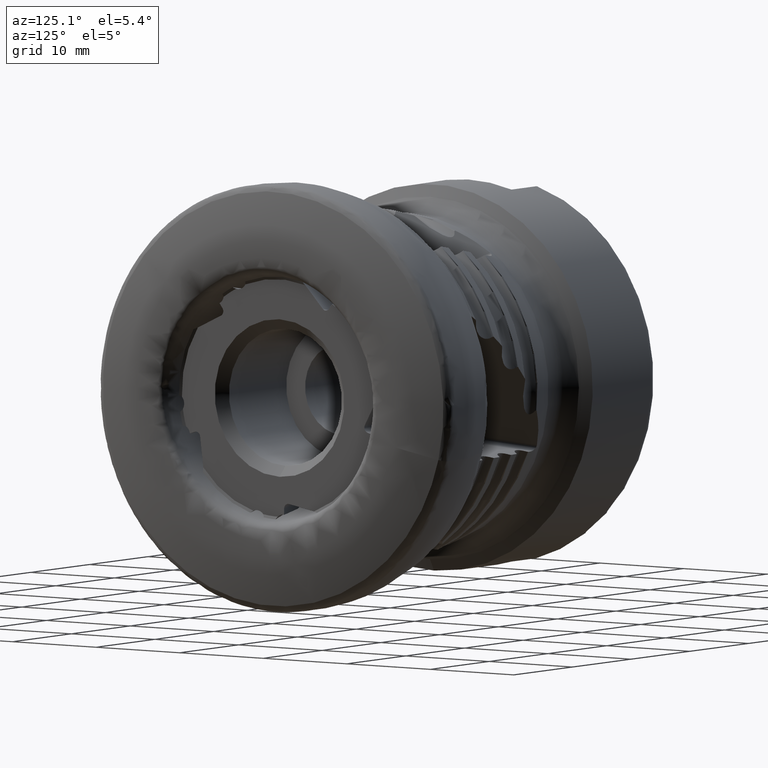
[diagram: clean part render]
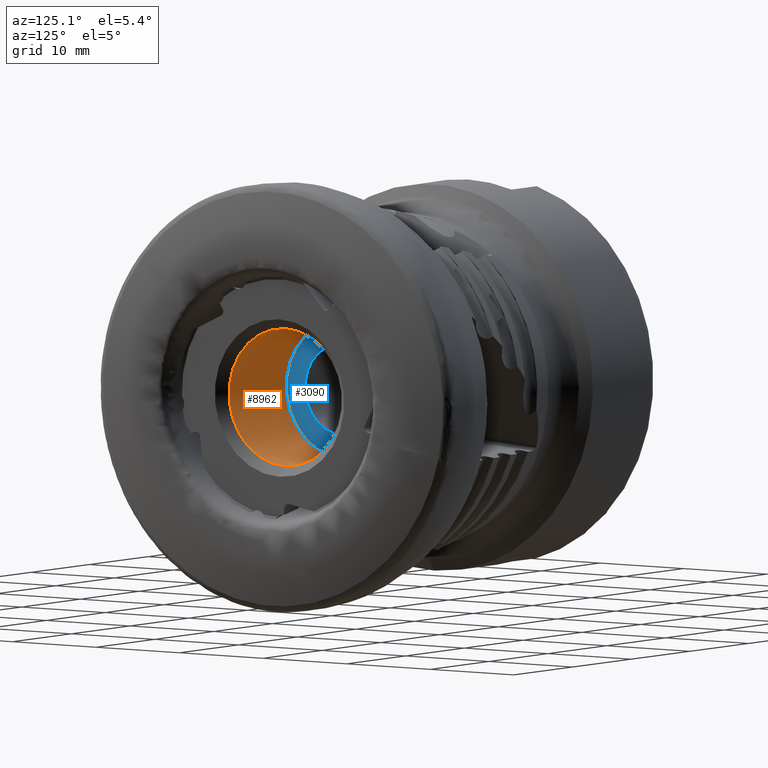
[diagram: same view with the hole feature highlighted: cylindrical wall and planar end face, labeled with their STEP entity ids]
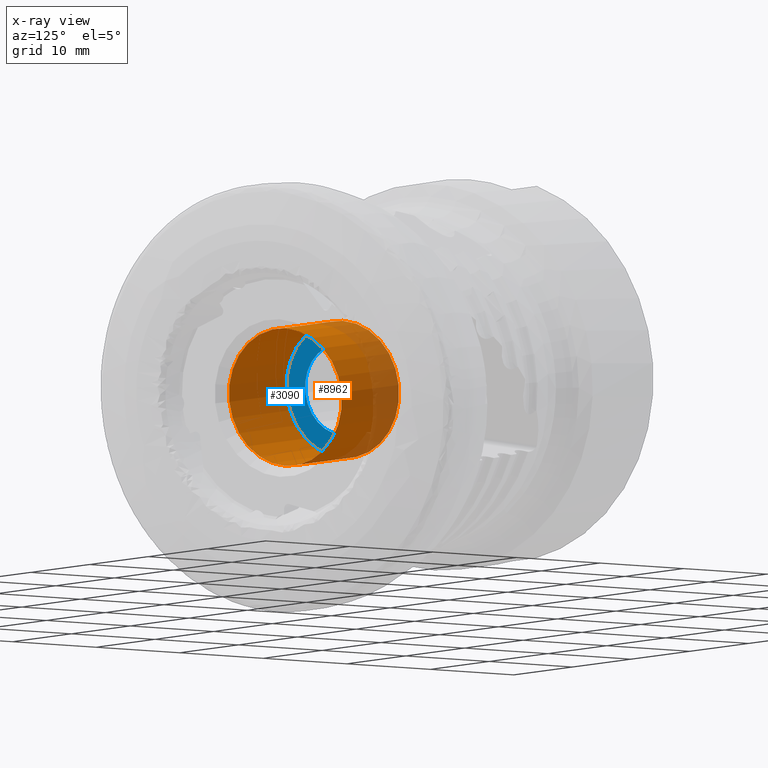
[diagram: x-ray of the same camera — body ghosted, the hole faces saturated]
A machine part, auxiliary view. The highlighted faces form one hole feature of diameter 13.5 mm: the cylindrical wall (entity #8962, orange) and its adjacent planar end face (entity #3090, blue) — they share a circular edge in the B-rep.
The next image is the same camera in x-ray (body ghosted, the hole faces saturated) — the bore reads through the body.
Wall:
#623 = FACE_OUTER_BOUND ( 'NONE', #9090, .T. ) ;
#741 = ORIENTED_EDGE ( 'NONE', *, *, #2740, .T. ) ;
#971 = VERTEX_POINT ( 'NONE', #8392 ) ;
#1312 = DIRECTION ( 'NONE',  ( 1.000000000000000000, -0.0000000000000000000, -0.0000000000000000000 ) ) ;
#1535 = DIRECTION ( 'NONE',  ( 0.0000000000000000000, 0.0000000000000000000, -1.000000000000000000 ) ) ;
#2212 = EDGE_CURVE ( 'NONE', #3015, #3015, #5958, .T. ) ;
#2740 = EDGE_CURVE ( 'NONE', #971, #971, #4090, .T. ) ;
#3015 = VERTEX_POINT ( 'NONE', #6250 ) ;
#3757 = AXIS2_PLACEMENT_3D ( 'NONE', #5959, #1312, #3774 ) ;
#3774 = DIRECTION ( 'NONE',  ( 0.0000000000000000000, 0.0000000000000000000, -1.000000000000000000 ) ) ;
#4090 = CIRCLE ( 'NONE', #3757, 6.750000000000000000 ) ;
#4492 = FACE_OUTER_BOUND ( 'NONE', #6006, .T. ) ;
#5374 = DIRECTION ( 'NONE',  ( 1.000000000000000000, -0.0000000000000000000, -0.0000000000000000000 ) ) ;
#5538 = ORIENTED_EDGE ( 'NONE', *, *, #2212, .F. ) ;
#5958 = CIRCLE ( 'NONE', #7998, 6.749999999999999100 ) ;
#5959 = CARTESIAN_POINT ( 'NONE',  ( -2.249999999999998700, 0.0000000000000000000, 0.0000000000000000000 ) ) ;
#6006 = EDGE_LOOP ( 'NONE', ( #741 ) ) ;
#6118 = CARTESIAN_POINT ( 'NONE',  ( 0.0000000000000000000, 0.0000000000000000000, 0.0000000000000000000 ) ) ;
#6192 = CYLINDRICAL_SURFACE ( 'NONE', #7294, 6.749999999999999100 ) ;
#6250 = CARTESIAN_POINT ( 'NONE',  ( -12.00000000000000000, 0.0000000000000000000, -6.749999999999999100 ) ) ;
#7294 = AXIS2_PLACEMENT_3D ( 'NONE', #6118, #5374, #1535 ) ;
#7653 = CARTESIAN_POINT ( 'NONE',  ( -12.00000000000000000, 0.0000000000000000000, 0.0000000000000000000 ) ) ;
#7657 = DIRECTION ( 'NONE',  ( 1.000000000000000000, -0.0000000000000000000, -0.0000000000000000000 ) ) ;
#7666 = DIRECTION ( 'NONE',  ( 0.0000000000000000000, 0.0000000000000000000, -1.000000000000000000 ) ) ;
#7998 = AXIS2_PLACEMENT_3D ( 'NONE', #7653, #7657, #7666 ) ;
#8392 = CARTESIAN_POINT ( 'NONE',  ( -2.249999999999998700, 0.0000000000000000000, -6.750000000000000000 ) ) ;
#8962 = ADVANCED_FACE ( 'NONE', ( #623, #4492 ), #6192, .F. ) ;
#9090 = EDGE_LOOP ( 'NONE', ( #5538 ) ) ;
End face:
#778 = DIRECTION ( 'NONE',  ( -1.000000000000000000, 0.0000000000000000000, 0.0000000000000000000 ) ) ;
#934 = EDGE_CURVE ( 'NONE', #5314, #5314, #7210, .T. ) ;
#2212 = EDGE_CURVE ( 'NONE', #3015, #3015, #5958, .T. ) ;
#3015 = VERTEX_POINT ( 'NONE', #6250 ) ;
#3090 = ADVANCED_FACE ( 'NONE', ( #4748, #6432 ), #4822, .F. ) ;
#3544 = EDGE_LOOP ( 'NONE', ( #7483 ) ) ;
#3560 = AXIS2_PLACEMENT_3D ( 'NONE', #4597, #778, #4171 ) ;
#4171 = DIRECTION ( 'NONE',  ( 0.0000000000000000000, 0.0000000000000000000, 1.000000000000000000 ) ) ;
#4597 = CARTESIAN_POINT ( 'NONE',  ( -12.00000000000000000, 6.749999999999999100, 0.0000000000000000000 ) ) ;
#4748 = FACE_BOUND ( 'NONE', #5783, .T. ) ;
#4772 = CARTESIAN_POINT ( 'NONE',  ( -12.00000000000000000, 0.0000000000000000000, -4.499999999999999100 ) ) ;
#4822 = PLANE ( 'NONE',  #3560 ) ;
#5314 = VERTEX_POINT ( 'NONE', #4772 ) ;
#5783 = EDGE_LOOP ( 'NONE', ( #6469 ) ) ;
#5958 = CIRCLE ( 'NONE', #7998, 6.749999999999999100 ) ;
#6250 = CARTESIAN_POINT ( 'NONE',  ( -12.00000000000000000, 0.0000000000000000000, -6.749999999999999100 ) ) ;
#6432 = FACE_OUTER_BOUND ( 'NONE', #3544, .T. ) ;
#6469 = ORIENTED_EDGE ( 'NONE', *, *, #934, .F. ) ;
#6578 = CARTESIAN_POINT ( 'NONE',  ( -12.00000000000000000, 0.0000000000000000000, 0.0000000000000000000 ) ) ;
#6586 = DIRECTION ( 'NONE',  ( 1.000000000000000000, -0.0000000000000000000, -0.0000000000000000000 ) ) ;
#6591 = DIRECTION ( 'NONE',  ( 0.0000000000000000000, 0.0000000000000000000, -1.000000000000000000 ) ) ;
#7210 = CIRCLE ( 'NONE', #8016, 4.499999999999999100 ) ;
#7483 = ORIENTED_EDGE ( 'NONE', *, *, #2212, .T. ) ;
#7653 = CARTESIAN_POINT ( 'NONE',  ( -12.00000000000000000, 0.0000000000000000000, 0.0000000000000000000 ) ) ;
#7657 = DIRECTION ( 'NONE',  ( 1.000000000000000000, -0.0000000000000000000, -0.0000000000000000000 ) ) ;
#7666 = DIRECTION ( 'NONE',  ( 0.0000000000000000000, 0.0000000000000000000, -1.000000000000000000 ) ) ;
#7998 = AXIS2_PLACEMENT_3D ( 'NONE', #7653, #7657, #7666 ) ;
#8016 = AXIS2_PLACEMENT_3D ( 'NONE', #6578, #6586, #6591 ) ;